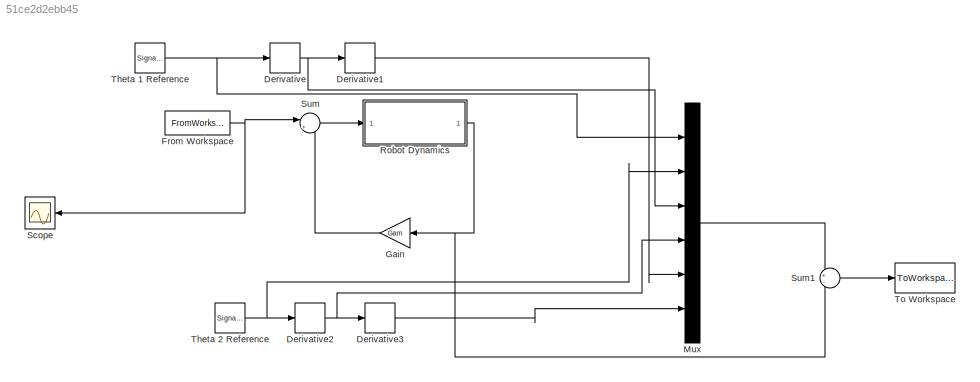
MODEL slx_51ce2d2ebb45
KIND model
CONFIG AbsTol = auto
CONFIG EnableMultiTasking = off
CONFIG FixedStep = T
CONFIG MaxStep = auto
CONFIG MinStep = auto
CONFIG RelTol = 1e-3
CONFIG SampleTimeConstraint = Unconstrained
CONFIG Solver = FixedStepAuto
CONFIG SolverName = FixedStepAuto
CONFIG StartTime = 0.0
CONFIG StopTime = 10.0
BLOCK [Derivative] Derivative
BLOCK [Derivative] Derivative1
BLOCK [Derivative] Derivative2
BLOCK [Derivative] Derivative3
BLOCK [FromWorkspace] From Workspace
  SampleTime = 0
  VariableName = r_ILC
  ZeroCross = on
BLOCK [Gain] Gain
  Gain = Gam
  Multiplication = Matrix(K*u)
  OutDataTypeStr = Inherit: Inherit via internal rule
  ParamDataTypeStr = Inherit: Inherit via internal rule
  SaturateOnIntegerOverflow = off
BLOCK [Mux] Mux
  DisplayOption = bar
  Inputs = 6
  Ports = [6, 1]
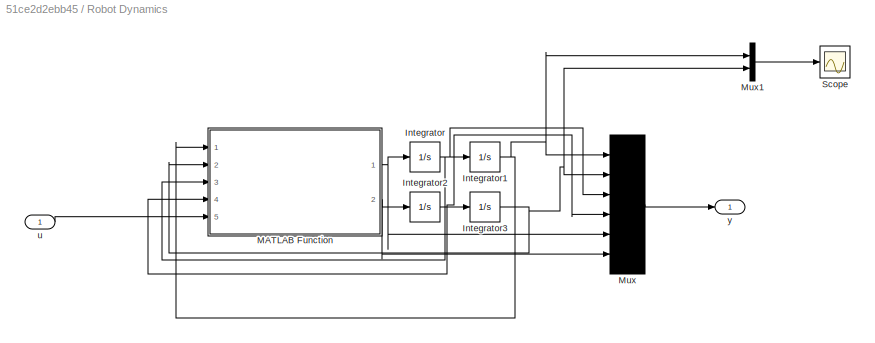
BLOCK [SubSystem] Robot Dynamics
  Ports = [1, 1]
  RequestExecContextInheritance = off
  Variant = off
BLOCK [Integrator] Robot Dynamics/Integrator
  Ports = [1, 1]
BLOCK [Integrator] Robot Dynamics/Integrator1
  Ports = [1, 1]
BLOCK [Integrator] Robot Dynamics/Integrator2
  Ports = [1, 1]
BLOCK [Integrator] Robot Dynamics/Integrator3
  Ports = [1, 1]
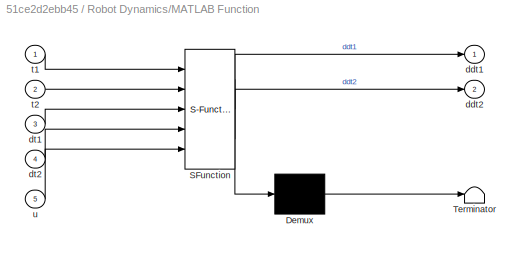
BLOCK [SubSystem] Robot Dynamics/MATLAB Function
  ErrorFcn = Stateflow.Translate.translate
  PermitHierarchicalResolution = ExplicitOnly
  Ports = [5, 2]
  RequestExecContextInheritance = off
  SFBlockType = MATLAB Function
  Variant = off
BLOCK [Demux] Robot Dynamics/MATLAB Function/ Demux 
  Outputs = 1
  Ports = [1, 1]
BLOCK [S-Function] Robot Dynamics/MATLAB Function/ SFunction 
  EnableBusSupport = on
  FunctionName = sf_sfun
  PortCounts = [5 3]
  Ports = [5, 3]
  SFcnIsStateOwnerBlock = off
  SFunctionDeploymentMode = off
  Tag = Stateflow S-Function Nonlinear_ILC 2
BLOCK [Terminator] Robot Dynamics/MATLAB Function/ Terminator 
BLOCK [Outport] Robot Dynamics/MATLAB Function/ddt1
  IconDisplay = Port number
BLOCK [Outport] Robot Dynamics/MATLAB Function/ddt2
  IconDisplay = Port number
  Port = 2
BLOCK [Inport] Robot Dynamics/MATLAB Function/dt1
  IconDisplay = Port number
  Port = 3
BLOCK [Inport] Robot Dynamics/MATLAB Function/dt2
  IconDisplay = Port number
  Port = 4
BLOCK [Inport] Robot Dynamics/MATLAB Function/t1
  IconDisplay = Port number
BLOCK [Inport] Robot Dynamics/MATLAB Function/t2
  IconDisplay = Port number
  Port = 2
BLOCK [Inport] Robot Dynamics/MATLAB Function/u
  IconDisplay = Port number
  Port = 5
BLOCK [Mux] Robot Dynamics/Mux
  DisplayOption = bar
  Inputs = 6
  Ports = [6, 1]
BLOCK [Mux] Robot Dynamics/Mux1
  DisplayOption = bar
  Inputs = 2
  Ports = [2, 1]
BLOCK [Scope] Robot Dynamics/Scope
  NumInputPorts = 1
  Ports = [1]
  ScopeSpecificationString = Simulink.scopes.TimeScopeBlockCfg('CurrentConfiguration', extmgr.ConfigurationSet(extmgr.Configuration('Core','General UI',true),extmgr.Configuration('Core','Source UI',true),extmgr.Configuration('Sources','WiredSimulink',true),extmgr.Configuration('Visuals','Time Domain',true,'SerializedDisplays',{struct('MinYLimReal','-1.25083','MaxYLimReal','1.25051','YLabelReal','','MinYLimMag','0.00000','MaxY...<+1402ch>
BLOCK [Inport] Robot Dynamics/u 
  IconDisplay = Port number
  PortDimensions = 2
BLOCK [Outport] Robot Dynamics/y
  IconDisplay = Port number
BLOCK [Scope] Scope
  NumInputPorts = 1
  Ports = [1]
  ScopeSpecificationString = Simulink.scopes.TimeScopeBlockCfg('CurrentConfiguration', extmgr.ConfigurationSet(extmgr.Configuration('Core','General UI',true),extmgr.Configuration('Core','Source UI',true),extmgr.Configuration('Sources','WiredSimulink',true,'DataLoggingVariableName','ScopeData1'),extmgr.Configuration('Visuals','Time Domain',true,'SerializedDisplays',{struct('MinYLimReal','-1037.335','MaxYLimReal','7903.41284','...<+1438ch>
BLOCK [Sum] Sum
  IconShape = round
  InputSameDT = off
  Inputs = |+-
  OutDataTypeStr = Inherit: Inherit via internal rule
  Ports = [2, 1]
  SaturateOnIntegerOverflow = off
BLOCK [Sum] Sum1
  IconShape = round
  InputSameDT = off
  Inputs = +-
  OutDataTypeStr = Inherit: Inherit via internal rule
  Ports = [2, 1]
  SaturateOnIntegerOverflow = off
BLOCK [SignalGenerator] Theta 1 Reference
  Frequency = 2
  Ports = [0, 1]
  Units = rad/sec
BLOCK [SignalGenerator] Theta 2 Reference
  Ports = [0, 1]
  Units = rad/sec
BLOCK [ToWorkspace] To Workspace
  FixptAsFi = on
  MaxDataPoints = inf
  Ports = [1]
  SampleTime = -1
  Save2DSignal = 3-D array (concatenate along third dimension)
  VariableName = error
LINE Derivative1:1 -> Mux:5
NET Derivative2:1 -> Derivative3:1, Mux:4
LINE Derivative3:1 -> Mux:6
NET Derivative:1 -> Derivative1:1, Mux:3
NET From Workspace:1 -> Scope:1, Sum:1
LINE Gain:1 -> Sum:2
LINE Mux:1 -> Sum1:1
NET Robot Dynamics/Integrator1:1 -> Robot Dynamics/MATLAB Function:1, Robot Dynamics/Mux1:1, Robot Dynamics/Mux:1
NET Robot Dynamics/Integrator2:1 -> Robot Dynamics/Integrator3:1, Robot Dynamics/MATLAB Function:4, Robot Dynamics/Mux:4
NET Robot Dynamics/Integrator3:1 -> Robot Dynamics/MATLAB Function:2, Robot Dynamics/Mux1:2, Robot Dynamics/Mux:2
NET Robot Dynamics/Integrator:1 -> Robot Dynamics/Integrator1:1, Robot Dynamics/MATLAB Function:3, Robot Dynamics/Mux:3
NET Robot Dynamics/MATLAB Function:1 -> Robot Dynamics/Integrator:1, Robot Dynamics/Mux:5
NET Robot Dynamics/MATLAB Function:2 -> Robot Dynamics/Integrator2:1, Robot Dynamics/Mux:6
LINE Robot Dynamics/Mux1:1 -> Robot Dynamics/Scope:1
LINE Robot Dynamics/Mux:1 -> Robot Dynamics/y:1
LINE Robot Dynamics/u :1 -> Robot Dynamics/MATLAB Function:5
NET Robot Dynamics:1 -> Gain:1, Sum1:2
LINE Sum1:1 -> To Workspace:1
LINE Sum:1 -> Robot Dynamics:1
NET Theta 1 Reference:1 -> Derivative:1, Mux:1
NET Theta 2 Reference:1 -> Derivative2:1, Mux:2
note: NET lines group one-source signal fan-out (src -> all destinations, sorted); 1:1 wires keep LINE
CHART Robot Dynamics/MATLAB Function states=1 transitions=1
  STATE_LABEL 'eML_blk_kernel()'
  STATE_LABEL 'SCRIPT:\nfunction [ddt1,ddt2] = fcn(t1,t2,dt1,dt2,u)\nA = [0.54+0.27*cos(t2) 0.135+0.135*cos(t2);0.135+0.135*cos(t2) 0.135];\nB = [0.135*sin(t2) 0;-0.27*sin(t2) -.135*sin(t2)*dt2];\nC = [13.1625*sin(t1)+4.3875*sin(t1+t2);4.3875*sin(t1+t2)];\n\nddx = inv(A)*(u-B*[dt1;dt2]-C);\nddt1 = ddx(1);\nddt2 = ddx(2);\n'
